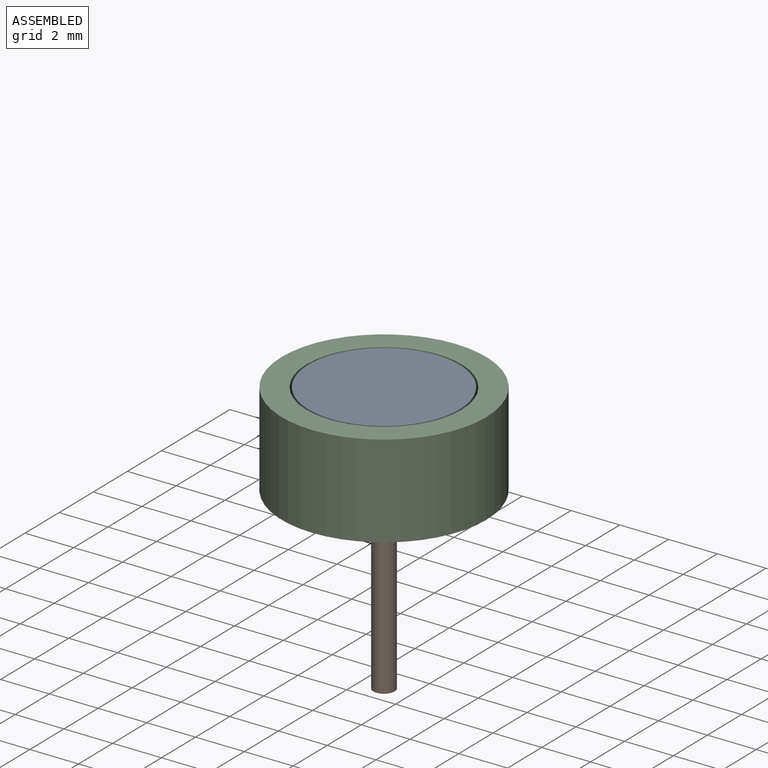
[diagram: assembled view]
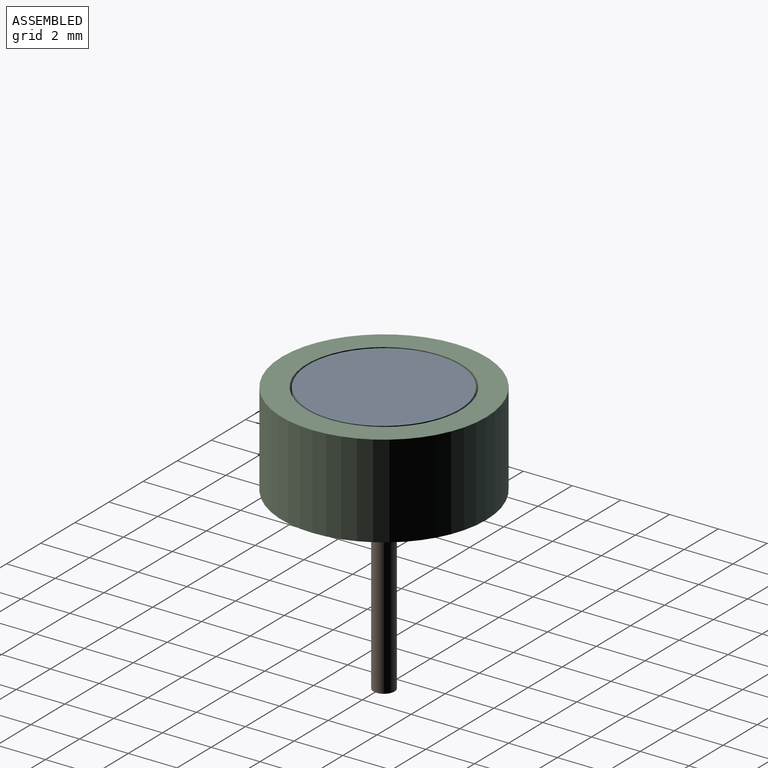
[diagram: assembled view, second angle]
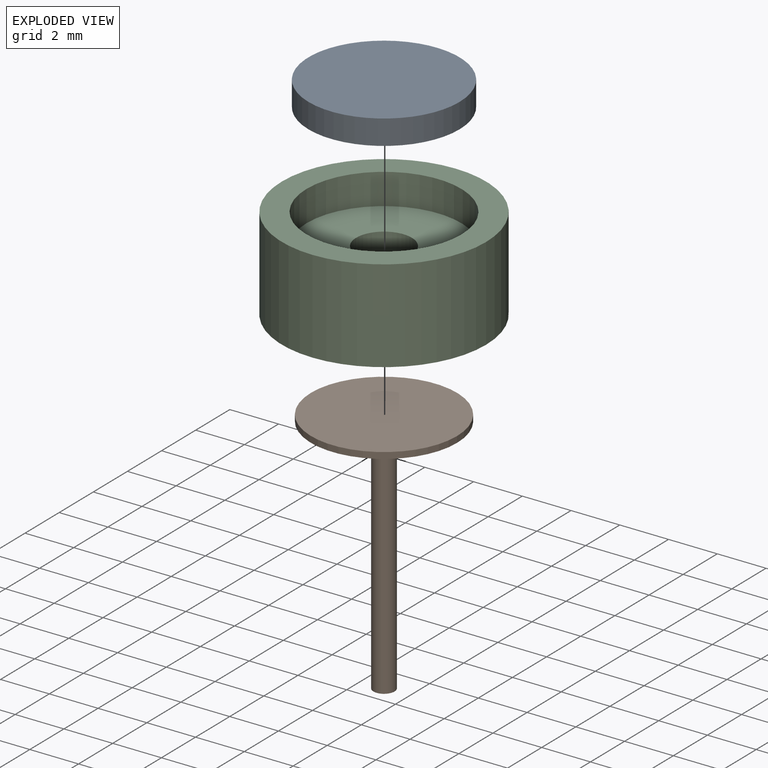
[diagram: exploded view]
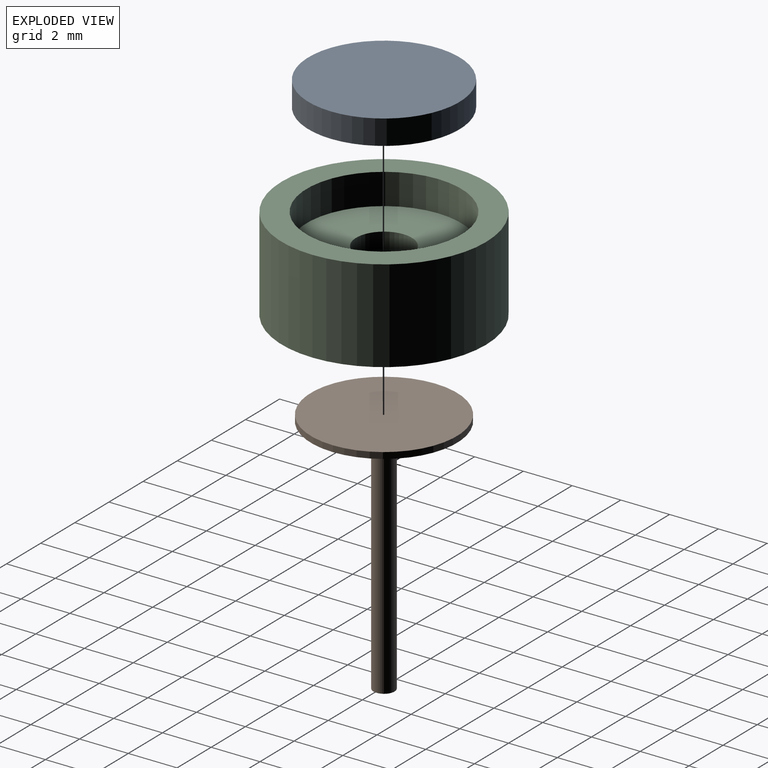
[diagram: exploded view, second angle]
ASSEMBLY  parts=3 mates=4
PART A: 3 faces, bbox 6.2x6.2x1 mm
  f0: cylinder r=3.1mm len=6.2mm, axis (0,0,-1), area 19.8mm2, adj f1,f2
  f1: plane 6.2x6.2mm, normal (0,0,1), area 30.2mm2, adj f0
  f2: plane 6.2x6.2mm, normal (0,0,-1), area 30.2mm2, adj f0
PART B: 7 faces, bbox 6x6x10.2 mm
  f0: plane 1.65x1.65mm, normal (0,0,-1), area 1.6mm2, adj f1,f6
  f1: cylinder r=0.43mm len=9.14mm, axis (0,0,-1), area 24.8mm2, adj f0,f2
  f2: plane 0.86x0.86mm, normal (0,0,-1), area 0.6mm2, adj f1
  f3: plane 5.99x5.99mm, normal (0,0,1), area 28.2mm2, adj f4
  f4: cylinder r=3mm len=5.99mm, axis (0,0,-1), area 4.8mm2, adj f3,f5
  f5: plane 5.99x5.99mm, normal (0,0,-1), area 26.1mm2, adj f4,f6
  f6: cylinder r=0.83mm len=1.65mm, axis (0,0,-1), area 4mm2, adj f0,f5
PART C: 8 faces, bbox 8.4x8.4x3.8 mm
  f0: plane 2.29x2.29mm, normal (0,0,1), area 3.3mm2, adj f1,f7
  f1: cylinder r=1.14mm len=2.29mm, axis (0,0,1), area 9.1mm2, adj f0,f2
  f2: plane 6.35x6.35mm, normal (0,0,1), area 27.6mm2, adj f1,f3
  f3: cylinder r=3.17mm len=6.35mm, axis (0,0,1), area 25.3mm2, adj f2,f4
  f4: plane 8.38x8.38mm, normal (0,0,1), area 23.5mm2, adj f3,f5
  f5: cylinder r=4.19mm len=8.38mm, axis (0,0,1), area 100.3mm2, adj f4,f6
  f6: plane 8.38x8.38mm, normal (0,0,-1), area 54.4mm2, adj f5,f7
  f7: cylinder r=0.51mm len=1.27mm, axis (0,0,1), area 4.1mm2, adj f0,f6
PLACE A rot(axis=(0,0,-1),0deg) t=(1.27,-1.62,-1.15)mm
PLACE B t=(1.27,-1.62,-1.15)mm
PLACE C rot(axis=(0,0,-1),0deg) t=(1.27,-1.62,-1.4)mm
MATE cylindrical C.f1 <-> B.f1  axis (0,0,-1) through (1.27,-1.62,-3.94)mm
MATE slider A.f0 <-> C.f1  axis (0,0,-1) through (1.27,-1.62,-0.64)mm
MATE fastened C.f1 <-> B.f1  axis (0,0,1) through (1.27,-1.62,-1.4)mm
MATE fastened A.f0 <-> B.f1  axis (0,0,-1) through (1.27,-1.62,-1.15)mm
